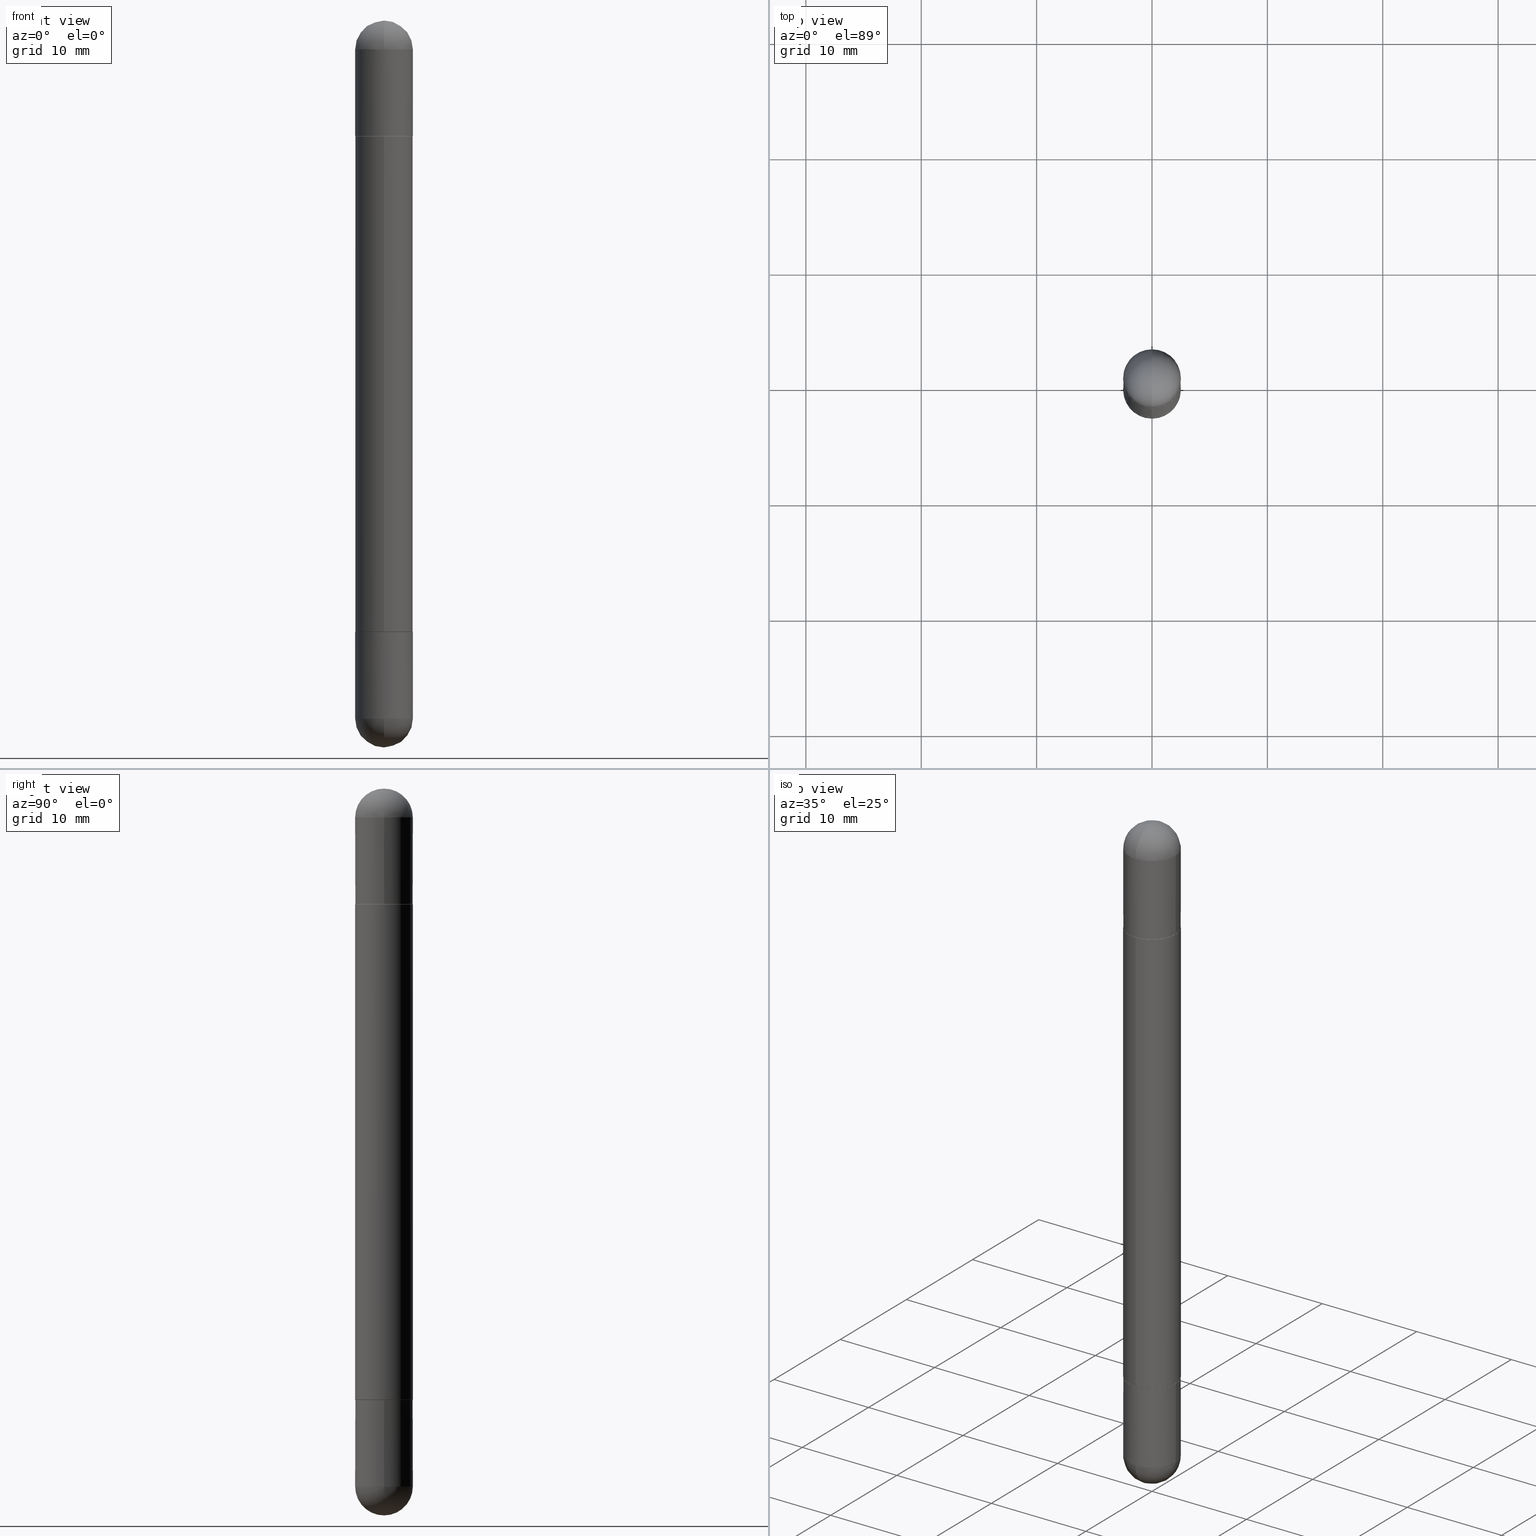
[diagram: canonical four-view strip — front | top / right | iso, engineering-drawing reading convention]
A machine part, canonical four-view strip (front | top / right | iso — engineering-drawing reading convention). The complete STEP part file that produces these views, byte-faithful:
ISO-10303-21;
HEADER;
FILE_DESCRIPTION (( 'STEP AP203' ),
    '1' );
FILE_NAME ('41438.STEP',
    '2024-03-01T12:44:50',
    ( '' ),
    ( '' ),
    'SwSTEP 2.0',
    'SolidWorks 2023',
    '' );
FILE_SCHEMA (( 'CONFIG_CONTROL_DESIGN' ));
ENDSEC;

DATA;
#1 = FACE_OUTER_BOUND ( 'NONE', #227, .T. ) ;
#2 = EDGE_CURVE ( 'NONE', #69, #377, #454, .T. ) ;
#3 = VERTEX_POINT ( 'NONE', #345 ) ;
#4 = ORIENTED_EDGE ( 'NONE', *, *, #318, .T. ) ;
#5 = AXIS2_PLACEMENT_3D ( 'NONE', #296, #549, #104 ) ;
#6 = DIRECTION ( 'NONE',  ( -1.000000000000000000, 7.105427357601001070E-15, -4.926315508542082329E-29 ) ) ;
#7 = CIRCLE ( 'NONE', #237, 0.09845000000000000973 ) ;
#8 = ORIENTED_EDGE ( 'NONE', *, *, #192, .T. ) ;
#9 = EDGE_CURVE ( 'NONE', #498, #541, #654, .T. ) ;
#10 = PLANE ( 'NONE',  #322 ) ;
#11 = ORIENTED_EDGE ( 'NONE', *, *, #26, .F. ) ;
#12 = DIRECTION ( 'NONE',  ( -6.982962677686266711E-15, -1.000000000000000000, -3.504166230970065993E-15 ) ) ;
#13 = ORIENTED_EDGE ( 'NONE', *, *, #95, .T. ) ;
#14 = DIRECTION ( 'NONE',  ( -6.982962677686265922E-15, -1.000000000000000000, -3.468572871589965081E-15 ) ) ;
#15 = EDGE_LOOP ( 'NONE', ( #450, #440, #8, #818 ) ) ;
#16 = FACE_OUTER_BOUND ( 'NONE', #316, .T. ) ;
#17 = EDGE_CURVE ( 'NONE', #404, #438, #636, .T. ) ;
#18 = AXIS2_PLACEMENT_3D ( 'NONE', #630, #817, #307 ) ;
#19 = EDGE_LOOP ( 'NONE', ( #277, #564 ) ) ;
#20 = AXIS2_PLACEMENT_3D ( 'NONE', #542, #790, #233 ) ;
#21 = PERSON_AND_ORGANIZATION ( #521, #639 ) ;
#22 = CC_DESIGN_APPROVAL ( #763, ( #219 ) ) ;
#23 = ORIENTED_EDGE ( 'NONE', *, *, #589, .T. ) ;
#24 = CARTESIAN_POINT ( 'NONE',  ( -6.804897129404755657E-16, -0.09745000000000728080, -2.086600000000000232 ) ) ;
#25 = DIRECTION ( 'NONE',  ( 2.445620201970747943E-29, -3.491264531461236863E-15, 1.000000000000000000 ) ) ;
#26 = EDGE_CURVE ( 'NONE', #477, #697, #283, .T. ) ;
#27 = DIRECTION ( 'NONE',  ( -6.982962677686265133E-15, -1.000000000000000000, -5.549716594543950441E-15 ) ) ;
#28 = ORIENTED_EDGE ( 'NONE', *, *, #375, .T. ) ;
#29 = ADVANCED_FACE ( 'NONE', ( #213 ), #755, .T. ) ;
#30 = APPROVAL_DATE_TIME ( #659, #763 ) ;
#31 = CARTESIAN_POINT ( 'NONE',  ( 5.824739876012068780E-29, -8.316184826923546689E-15, -0.09844999999999987095 ) ) ;
#32 = EDGE_LOOP ( 'NONE', ( #508, #484 ) ) ;
#33 = DIRECTION ( 'NONE',  ( -6.982962677686265922E-15, -1.000000000000000000, -3.468572871589965081E-15 ) ) ;
#34 = CIRCLE ( 'NONE', #706, 0.09845000000000000973 ) ;
#35 = CALENDAR_DATE ( 2024, 1, 3 ) ;
#36 = AXIS2_PLACEMENT_3D ( 'NONE', #208, #401, #334 ) ;
#37 = VECTOR ( 'NONE', #423, 39.37007874015748143 ) ;
#38 = AXIS2_PLACEMENT_3D ( 'NONE', #246, #251, #738 ) ;
#39 = DIRECTION ( 'NONE',  ( 2.445620201970747943E-29, -3.491264531461236863E-15, 1.000000000000000000 ) ) ;
#40 = CARTESIAN_POINT ( 'NONE',  ( -6.995293233557624958E-16, -0.09845000000000865559, -2.381850000000000023 ) ) ;
#41 = ADVANCED_FACE ( 'NONE', ( #460 ), #144, .T. ) ;
#42 = DIRECTION ( 'NONE',  ( 1.000000000000000000, -6.982962677686265922E-15, 0.000000000000000000 ) ) ;
#43 = DIRECTION ( 'NONE',  ( -2.445468806185136597E-29, 3.491481338843145583E-15, -1.000000000000000000 ) ) ;
#44 =( NAMED_UNIT ( * ) PLANE_ANGLE_UNIT ( ) SI_UNIT ( $, .RADIAN. ) );
#45 = CARTESIAN_POINT ( 'NONE',  ( 6.959766096770698684E-16, 0.09744999999999269524, -2.086600000000000676 ) ) ;
#46 = DIRECTION ( 'NONE',  ( 2.445620201970747943E-29, -3.491264531461236863E-15, 1.000000000000000000 ) ) ;
#47 = EDGE_CURVE ( 'NONE', #700, #775, #180, .T. ) ;
#48 = AXIS2_PLACEMENT_3D ( 'NONE', #488, #43, #292 ) ;
#49 = AXIS2_PLACEMENT_3D ( 'NONE', #778, #276, #466 ) ;
#50 = CC_DESIGN_SECURITY_CLASSIFICATION ( #615, ( #483 ) ) ;
#51 = DIRECTION ( 'NONE',  ( 6.860497997771531562E-15, 1.000000000000000000, 0.000000000000000000 ) ) ;
#52 = LINE ( 'NONE', #808, #795 ) ;
#53 = DIRECTION ( 'NONE',  ( -2.445620201970748223E-29, 3.491264531461236468E-15, -1.000000000000000000 ) ) ;
#54 = FACE_OUTER_BOUND ( 'NONE', #631, .T. ) ;
#55 = FACE_OUTER_BOUND ( 'NONE', #627, .T. ) ;
#56 = DIRECTION ( 'NONE',  ( 6.982962677686265922E-15, 1.000000000000000000, 3.468572871589967054E-15 ) ) ;
#57 = DIRECTION ( 'NONE',  ( -6.982962677686266711E-15, -1.000000000000000000, 2.803332984776052637E-15 ) ) ;
#58 = DIRECTION ( 'NONE',  ( -2.445468806185136597E-29, 3.491481338843145583E-15, -1.000000000000000000 ) ) ;
#59 = AXIS2_PLACEMENT_3D ( 'NONE', #620, #301, #605 ) ;
#60 = CIRCLE ( 'NONE', #518, 0.09844999999999999585 ) ;
#61 = CARTESIAN_POINT ( 'NONE',  ( 5.103031113432164627E-29, -7.284872571347017777E-15, -0.3936999999999999389 ) ) ;
#62 = VERTEX_POINT ( 'NONE', #270 ) ;
#63 = ORIENTED_EDGE ( 'NONE', *, *, #670, .F. ) ;
#64 = EDGE_CURVE ( 'NONE', #404, #446, #161, .T. ) ;
#65 = ADVANCED_FACE ( 'NONE', ( #210 ), #386, .T. ) ;
#66 = DIRECTION ( 'NONE',  ( 1.000000000000000000, -6.982962677686273810E-15, 0.000000000000000000 ) ) ;
#67 = EDGE_LOOP ( 'NONE', ( #172, #514, #73, #254 ) ) ;
#68 = CARTESIAN_POINT ( 'NONE',  ( 5.493620098098182533E-29, -8.790367195063598563E-15, -0.09844999999999987095 ) ) ;
#69 = VERTEX_POINT ( 'NONE', #719 ) ;
#70 = AXIS2_PLACEMENT_3D ( 'NONE', #462, #157, #777 ) ;
#71 = CARTESIAN_POINT ( 'NONE',  ( -0.09845000000000000973, 6.754160278806074041E-16, -2.480300000000000171 ) ) ;
#72 = AXIS2_PLACEMENT_3D ( 'NONE', #721, #339, #12 ) ;
#73 = ORIENTED_EDGE ( 'NONE', *, *, #273, .T. ) ;
#74 = ORIENTED_EDGE ( 'NONE', *, *, #17, .F. ) ;
#75 = ORIENTED_EDGE ( 'NONE', *, *, #463, .T. ) ;
#76 = DIRECTION ( 'NONE',  ( 2.445620201970747943E-29, -3.491264531461236863E-15, 1.000000000000000000 ) ) ;
#77 = EDGE_CURVE ( 'NONE', #389, #446, #34, .T. ) ;
#78 = DIRECTION ( 'NONE',  ( 6.982962677686265922E-15, 1.000000000000000000, 3.468572871589967054E-15 ) ) ;
#79 = ORIENTED_EDGE ( 'NONE', *, *, #759, .T. ) ;
#80 = PERSON_AND_ORGANIZATION_ROLE ( 'design_supplier' ) ;
#81 = ADVANCED_FACE ( 'NONE', ( #340 ), #140, .T. ) ;
#82 = DIRECTION ( 'NONE',  ( -2.445620201970747943E-29, 3.491264531461236468E-15, -1.000000000000000000 ) ) ;
#83 = AXIS2_PLACEMENT_3D ( 'NONE', #68, #262, #635 ) ;
#84 = EDGE_LOOP ( 'NONE', ( #686, #703, #529, #382, #205 ) ) ;
#85 = VECTOR ( 'NONE', #652, 39.37007874015748143 ) ;
#86 = PERSON_AND_ORGANIZATION_ROLE ( 'classification_officer' ) ;
#87 = AXIS2_PLACEMENT_3D ( 'NONE', #369, #606, #742 ) ;
#88 = CARTESIAN_POINT ( 'NONE',  ( -0.09844999999999999585, -7.101225570921008942E-15, -2.086600000000000232 ) ) ;
#89 = ADVANCED_FACE ( 'NONE', ( #491 ), #798, .T. ) ;
#90 = DIRECTION ( 'NONE',  ( 1.000000000000000000, -6.982962677686273810E-15, 0.000000000000000000 ) ) ;
#91 = DATE_TIME_ROLE ( 'creation_date' ) ;
#92 = FACE_OUTER_BOUND ( 'NONE', #358, .T. ) ;
#93 = ADVANCED_FACE ( 'NONE', ( #55 ), #430, .T. ) ;
#94 = VERTEX_POINT ( 'NONE', #304 ) ;
#95 = EDGE_CURVE ( 'NONE', #598, #250, #235, .T. ) ;
#96 = PERSON_AND_ORGANIZATION ( #521, #639 ) ;
#97 = CARTESIAN_POINT ( 'NONE',  ( -0.09845000000000000973, -7.125338866396221621E-15, -0.09844999999999987095 ) ) ;
#98 = DIRECTION ( 'NONE',  ( -0.000000000000000000, -0.000000000000000000, -1.000000000000000000 ) ) ;
#99 = AXIS2_PLACEMENT_3D ( 'NONE', #540, #741, #229 ) ;
#100 = CIRCLE ( 'NONE', #207, 0.09844999999999999585 ) ;
#101 = FACE_OUTER_BOUND ( 'NONE', #177, .T. ) ;
#102 = DIRECTION ( 'NONE',  ( -2.445620201970747943E-29, 3.491264531461236863E-15, 1.000000000000000000 ) ) ;
#103 = CARTESIAN_POINT ( 'NONE',  ( 5.103031113432164627E-29, -7.284872571347017777E-15, -0.3936999999999999389 ) ) ;
#104 = DIRECTION ( 'NONE',  ( 1.000000000000000000, -6.982962677686265922E-15, 0.000000000000000000 ) ) ;
#105 = ORIENTED_EDGE ( 'NONE', *, *, #550, .F. ) ;
#106 = DIRECTION ( 'NONE',  ( -1.000000000000000000, 6.982962677686265922E-15, 4.876176775795935793E-29 ) ) ;
#107 = CARTESIAN_POINT ( 'NONE',  ( 0.09845000000000000973, -8.488227569895042768E-15, -2.381850000000000467 ) ) ;
#108 = SPHERICAL_SURFACE ( 'NONE', #310, 0.09845000000000017626 ) ;
#109 = ORIENTED_EDGE ( 'NONE', *, *, #2, .F. ) ;
#110 = SPHERICAL_SURFACE ( 'NONE', #684, 0.09845000000000017626 ) ;
#111 = CLOSED_SHELL ( 'NONE', ( #295, #578, #500, #671, #716, #81, #29, #355 ) ) ;
#112 = CIRCLE ( 'NONE', #743, 0.09845000000000000973 ) ;
#113 = VECTOR ( 'NONE', #524, 39.37007874015748143 ) ;
#114 = LOCAL_TIME ( 7, 44, 50.00000000000000000, #403 ) ;
#115 = DIRECTION ( 'NONE',  ( 1.000000000000000000, -6.982962677686273810E-15, 0.000000000000000000 ) ) ;
#116 = DIRECTION ( 'NONE',  ( 1.000000000000000000, -6.982962677686266711E-15, 0.000000000000000000 ) ) ;
#117 = EDGE_CURVE ( 'NONE', #438, #389, #348, .T. ) ;
#118 = DIRECTION ( 'NONE',  ( -2.445468806185136597E-29, 3.491481338843145583E-15, 1.000000000000000000 ) ) ;
#119 = CARTESIAN_POINT ( 'NONE',  ( 5.493620098098182533E-29, -8.790367195063598563E-15, -0.09844999999999987095 ) ) ;
#120 = LINE ( 'NONE', #507, #783 ) ;
#121 = ORIENTED_EDGE ( 'NONE', *, *, #335, .F. ) ;
#122 = EDGE_CURVE ( 'NONE', #775, #700, #811, .T. ) ;
#123 = AXIS2_PLACEMENT_3D ( 'NONE', #797, #239, #551 ) ;
#124 = APPROVAL_PERSON_ORGANIZATION ( #341, #384, #588 ) ;
#125 = DIRECTION ( 'NONE',  ( -2.445620201970747943E-29, 3.491264531461236468E-15, -1.000000000000000000 ) ) ;
#126 = ORIENTED_EDGE ( 'NONE', *, *, #444, .T. ) ;
#127 = CC_DESIGN_PERSON_AND_ORGANIZATION_ASSIGNMENT ( #581, #80, ( #483 ) ) ;
#128 = DIRECTION ( 'NONE',  ( -4.937700262165011104E-15, -0.7071067811866114106, -0.7071067811864836239 ) ) ;
#129 = ORIENTED_EDGE ( 'NONE', *, *, #617, .T. ) ;
#130 = ORIENTED_EDGE ( 'NONE', *, *, #243, .F. ) ;
#131 = CARTESIAN_POINT ( 'NONE',  ( 6.874726756182700483E-16, 0.09844999999999154427, -2.381850000000000911 ) ) ;
#132 = ORIENTED_EDGE ( 'NONE', *, *, #550, .T. ) ;
#133 = ADVANCED_BREP_SHAPE_REPRESENTATION ( '41438', ( #538, #263, #814, #232, #807, #571 ), #151 ) ;
#134 = CIRCLE ( 'NONE', #443, 0.09744999999999999496 ) ;
#135 = LINE ( 'NONE', #594, #181 ) ;
#136 = ORIENTED_EDGE ( 'NONE', *, *, #522, .F. ) ;
#137 = ORIENTED_EDGE ( 'NONE', *, *, #273, .F. ) ;
#138 = DATE_AND_TIME ( #767, #195 ) ;
#139 = DIRECTION ( 'NONE',  ( -2.445468806185136877E-29, 3.491481338843145188E-15, -1.000000000000000000 ) ) ;
#140 = CYLINDRICAL_SURFACE ( 'NONE', #442, 0.09845000000000013463 ) ;
#141 = APPROVAL_ROLE ( '' ) ;
#142 = ADVANCED_FACE ( 'NONE', ( #803 ), #418, .T. ) ;
#143 = CARTESIAN_POINT ( 'NONE',  ( -6.874726756182137434E-16, -0.09845000000000013463, -2.480300000000001059 ) ) ;
#144 = SPHERICAL_SURFACE ( 'NONE', #494, 0.09845000000000017626 ) ;
#145 = EDGE_CURVE ( 'NONE', #3, #498, #52, .T. ) ;
#146 = DIRECTION ( 'NONE',  ( 2.445468806185136597E-29, -3.491481338843145583E-15, 1.000000000000000000 ) ) ;
#147 = AXIS2_PLACEMENT_3D ( 'NONE', #587, #715, #410 ) ;
#148 = CARTESIAN_POINT ( 'NONE',  ( 5.824739876012068780E-29, -8.316184826923546689E-15, -0.09844999999999987095 ) ) ;
#149 = AXIS2_PLACEMENT_3D ( 'NONE', #559, #815, #625 ) ;
#150 = PERSON_AND_ORGANIZATION ( #521, #639 ) ;
#151 =( GEOMETRIC_REPRESENTATION_CONTEXT ( 3 ) GLOBAL_UNCERTAINTY_ASSIGNED_CONTEXT ( ( #646 ) ) GLOBAL_UNIT_ASSIGNED_CONTEXT ( ( #735, #44, #163 ) ) REPRESENTATION_CONTEXT ( 'NONE', 'WORKASPACE' ) );
#152 = ORIENTED_EDGE ( 'NONE', *, *, #265, .F. ) ;
#153 = CARTESIAN_POINT ( 'NONE',  ( -6.874726756181635521E-16, -0.09845000000000754536, -0.3947000000000003839 ) ) ;
#154 = ORIENTED_EDGE ( 'NONE', *, *, #2, .T. ) ;
#155 = DATE_AND_TIME ( #328, #710 ) ;
#156 = DIRECTION ( 'NONE',  ( 6.982962677686265922E-15, 1.000000000000000000, -2.774858297271973643E-15 ) ) ;
#157 = DIRECTION ( 'NONE',  ( -2.445620201970747943E-29, 3.491264531461236863E-15, 1.000000000000000000 ) ) ;
#158 = EDGE_LOOP ( 'NONE', ( #130, #4, #391, #468, #789 ) ) ;
#159 = DIRECTION ( 'NONE',  ( -2.445468806185136597E-29, 3.491481338843145583E-15, 1.000000000000000000 ) ) ;
#160 = CARTESIAN_POINT ( 'NONE',  ( 6.719857788817732685E-16, 0.09744999999999269524, -0.3936999999999996058 ) ) ;
#161 = CIRCLE ( 'NONE', #597, 0.09845000000000017626 ) ;
#162 = EDGE_LOOP ( 'NONE', ( #698, #361, #372, #137 ) ) ;
#163 =( NAMED_UNIT ( * ) SI_UNIT ( $, .STERADIAN. ) SOLID_ANGLE_UNIT ( ) );
#164 = AXIS2_PLACEMENT_3D ( 'NONE', #436, #6, #259 ) ;
#165 = CIRCLE ( 'NONE', #87, 0.09744999999999999496 ) ;
#166 = CYLINDRICAL_SURFACE ( 'NONE', #388, 0.09845000000000000973 ) ;
#167 = FACE_OUTER_BOUND ( 'NONE', #523, .T. ) ;
#168 = FACE_OUTER_BOUND ( 'NONE', #158, .T. ) ;
#169 = SPHERICAL_SURFACE ( 'NONE', #496, 0.09845000000000017626 ) ;
#170 = DIRECTION ( 'NONE',  ( -6.982962677686265133E-15, -1.000000000000000000, -5.549716594543950441E-15 ) ) ;
#171 = ORIENTED_EDGE ( 'NONE', *, *, #257, .T. ) ;
#172 = ORIENTED_EDGE ( 'NONE', *, *, #643, .F. ) ;
#173 = APPLICATION_PROTOCOL_DEFINITION ( 'international standard', 'config_control_design', 1994, #668 ) ;
#174 = ADVANCED_FACE ( 'NONE', ( #249 ), #552, .T. ) ;
#175 = DIRECTION ( 'NONE',  ( -2.445468806185136877E-29, 3.491481338843145188E-15, 1.000000000000000000 ) ) ;
#176 = CARTESIAN_POINT ( 'NONE',  ( 0.000000000000000000, 0.000000000000000000, 0.000000000000000000 ) ) ;
#177 = EDGE_LOOP ( 'NONE', ( #760, #264 ) ) ;
#178 = CARTESIAN_POINT ( 'NONE',  ( 5.738586058125595532E-29, -9.128075209003904434E-15, 3.073328992872296367E-16 ) ) ;
#179 = AXIS2_PLACEMENT_3D ( 'NONE', #661, #76, #33 ) ;
#180 = CIRCLE ( 'NONE', #582, 0.09845000000000024565 ) ;
#181 = VECTOR ( 'NONE', #390, 39.37007874015748143 ) ;
#182 = CIRCLE ( 'NONE', #38, 0.09844999999999999585 ) ;
#183 = FACE_OUTER_BOUND ( 'NONE', #765, .T. ) ;
#184 = CARTESIAN_POINT ( 'NONE',  ( 5.824739876012068780E-29, -8.316184826923546689E-15, -2.381850000000000467 ) ) ;
#185 = CARTESIAN_POINT ( 'NONE',  ( 0.000000000000000000, 0.000000000000000000, -2.480300000000000171 ) ) ;
#186 = FACE_OUTER_BOUND ( 'NONE', #634, .T. ) ;
#187 = ORIENTED_EDGE ( 'NONE', *, *, #17, .T. ) ;
#188 = LINE ( 'NONE', #439, #583 ) ;
#189 = ORIENTED_EDGE ( 'NONE', *, *, #405, .T. ) ;
#190 = ORIENTED_EDGE ( 'NONE', *, *, #318, .F. ) ;
#191 = ORIENTED_EDGE ( 'NONE', *, *, #411, .F. ) ;
#192 = EDGE_CURVE ( 'NONE', #477, #598, #475, .T. ) ;
#193 = AXIS2_PLACEMENT_3D ( 'NONE', #284, #274, #537 ) ;
#194 = AXIS2_PLACEMENT_3D ( 'NONE', #702, #317, #57 ) ;
#195 = LOCAL_TIME ( 7, 44, 50.00000000000000000, #527 ) ;
#196 = DIRECTION ( 'NONE',  ( -6.982962677686265922E-15, -1.000000000000000000, 3.491264531461236468E-15 ) ) ;
#197 = VERTEX_POINT ( 'NONE', #793 ) ;
#198 = CARTESIAN_POINT ( 'NONE',  ( 0.000000000000000000, 0.000000000000000000, -1.240150000000000086 ) ) ;
#199 = ORIENTED_EDGE ( 'NONE', *, *, #26, .T. ) ;
#200 = DIRECTION ( 'NONE',  ( -2.445468806185136597E-29, 3.491481338843145583E-15, 1.000000000000000000 ) ) ;
#201 = ORIENTED_EDGE ( 'NONE', *, *, #791, .F. ) ;
#202 = DESIGN_CONTEXT ( 'detailed design', #472, 'design' ) ;
#203 = VERTEX_POINT ( 'NONE', #160 ) ;
#204 = APPROVAL_STATUS ( 'not_yet_approved' ) ;
#205 = ORIENTED_EDGE ( 'NONE', *, *, #215, .F. ) ;
#206 = CIRCLE ( 'NONE', #5, 0.09844999999999999585 ) ;
#207 = AXIS2_PLACEMENT_3D ( 'NONE', #474, #228, #226 ) ;
#208 = CARTESIAN_POINT ( 'NONE',  ( 5.824739876012068780E-29, -8.316184826923546689E-15, -0.09844999999999987095 ) ) ;
#209 = AXIS2_PLACEMENT_3D ( 'NONE', #359, #553, #669 ) ;
#210 = FACE_OUTER_BOUND ( 'NONE', #566, .T. ) ;
#211 = COORDINATED_UNIVERSAL_TIME_OFFSET ( 5, 0, .BEHIND. ) ;
#212 = DIRECTION ( 'NONE',  ( -2.445620201970747943E-29, 3.491264531461236863E-15, -1.000000000000000000 ) ) ;
#213 = FACE_OUTER_BOUND ( 'NONE', #15, .T. ) ;
#214 = EDGE_CURVE ( 'NONE', #248, #633, #271, .T. ) ;
#215 = EDGE_CURVE ( 'NONE', #437, #94, #206, .T. ) ;
#216 = CARTESIAN_POINT ( 'NONE',  ( 5.824739876012068780E-29, -8.316184826923546689E-15, -0.09844999999999987095 ) ) ;
#217 = DIRECTION ( 'NONE',  ( -6.982962677686266711E-15, -1.000000000000000000, -3.504166230970065993E-15 ) ) ;
#218 = COORDINATED_UNIVERSAL_TIME_OFFSET ( 5, 0, .BEHIND. ) ;
#219 = PRODUCT_DEFINITION ( 'UNKNOWN', '', #483, #202 ) ;
#220 = DIRECTION ( 'NONE',  ( -2.445620201970747943E-29, 3.491264531461236863E-15, -1.000000000000000000 ) ) ;
#221 = CLOSED_SHELL ( 'NONE', ( #142, #65, #291, #805, #93, #509 ) ) ;
#222 = VECTOR ( 'NONE', #128, 39.37007874015748143 ) ;
#223 = ORIENTED_EDGE ( 'NONE', *, *, #650, .F. ) ;
#224 = AXIS2_PLACEMENT_3D ( 'NONE', #512, #590, #282 ) ;
#225 = APPROVAL_DATE_TIME ( #648, #384 ) ;
#226 = DIRECTION ( 'NONE',  ( 1.000000000000000000, -6.982962677686265922E-15, 0.000000000000000000 ) ) ;
#227 = EDGE_LOOP ( 'NONE', ( #199, #441, #489, #448 ) ) ;
#228 = DIRECTION ( 'NONE',  ( 2.445468806185136597E-29, -3.491481338843145583E-15, 1.000000000000000000 ) ) ;
#229 = DIRECTION ( 'NONE',  ( 1.000000000000000000, -6.982962677686273810E-15, 0.000000000000000000 ) ) ;
#230 = ADVANCED_FACE ( 'NONE', ( #167 ), #108, .T. ) ;
#231 = DIRECTION ( 'NONE',  ( 1.000000000000000000, -6.982962677686266711E-15, 0.000000000000000000 ) ) ;
#232 = MANIFOLD_SOLID_BREP ( 'Mirror4[4]', #531 ) ;
#233 = DIRECTION ( 'NONE',  ( -6.982962677686266711E-15, -1.000000000000000000, -3.504166230970065993E-15 ) ) ;
#234 = DIRECTION ( 'NONE',  ( -6.982962677686265922E-15, -1.000000000000000000, -3.468572871589965081E-15 ) ) ;
#235 = CIRCLE ( 'NONE', #664, 0.09845000000000024565 ) ;
#236 = DIRECTION ( 'NONE',  ( -6.982962677686265922E-15, -1.000000000000000000, -3.491264531461236468E-15 ) ) ;
#237 = AXIS2_PLACEMENT_3D ( 'NONE', #563, #756, #380 ) ;
#238 = APPROVAL_PERSON_ORGANIZATION ( #96, #801, #596 ) ;
#239 = DIRECTION ( 'NONE',  ( -0.000000000000000000, -0.000000000000000000, -1.000000000000000000 ) ) ;
#240 = DIRECTION ( 'NONE',  ( -6.982962677686266711E-15, -1.000000000000000000, -3.504166230970065993E-15 ) ) ;
#241 = ORIENTED_EDGE ( 'NONE', *, *, #713, .F. ) ;
#242 = EDGE_CURVE ( 'NONE', #637, #577, #638, .T. ) ;
#243 = EDGE_CURVE ( 'NONE', #197, #685, #769, .T. ) ;
#244 = DIRECTION ( 'NONE',  ( 1.000000000000000000, -6.860497997771530774E-15, -4.840798879624142912E-29 ) ) ;
#245 = DIRECTION ( 'NONE',  ( -4.937700262165011104E-15, -0.7071067811866114106, 0.7071067811864836239 ) ) ;
#246 = CARTESIAN_POINT ( 'NONE',  ( 5.102715210985907397E-29, -7.285324961630108994E-15, -0.3936999999999999389 ) ) ;
#247 = LINE ( 'NONE', #744, #467 ) ;
#248 = VERTEX_POINT ( 'NONE', #40 ) ;
#249 = FACE_OUTER_BOUND ( 'NONE', #503, .T. ) ;
#250 = VERTEX_POINT ( 'NONE', #362 ) ;
#251 = DIRECTION ( 'NONE',  ( 2.445468806185136597E-29, -3.491481338843145583E-15, 1.000000000000000000 ) ) ;
#252 = AXIS2_PLACEMENT_3D ( 'NONE', #394, #645, #78 ) ;
#253 = DIRECTION ( 'NONE',  ( 2.445468806185136597E-29, -3.491481338843145583E-15, 1.000000000000000000 ) ) ;
#254 = ORIENTED_EDGE ( 'NONE', *, *, #47, .T. ) ;
#255 = EDGE_CURVE ( 'NONE', #62, #248, #112, .T. ) ;
#256 = FACE_OUTER_BOUND ( 'NONE', #32, .T. ) ;
#257 = EDGE_CURVE ( 'NONE', #799, #377, #569, .T. ) ;
#258 = ORIENTED_EDGE ( 'NONE', *, *, #792, .T. ) ;
#259 = DIRECTION ( 'NONE',  ( -7.105427357601001070E-15, -1.000000000000000000, 0.000000000000000000 ) ) ;
#260 = EDGE_LOOP ( 'NONE', ( #452, #753, #223, #327 ) ) ;
#261 = EDGE_CURVE ( 'NONE', #250, #598, #517, .T. ) ;
#262 = DIRECTION ( 'NONE',  ( 1.000000000000000000, -6.982962677686265922E-15, -4.883557194083112901E-29 ) ) ;
#263 = MANIFOLD_SOLID_BREP ( 'Mirror4[1]', #221 ) ;
#264 = ORIENTED_EDGE ( 'NONE', *, *, #379, .F. ) ;
#265 = EDGE_CURVE ( 'NONE', #717, #3, #694, .T. ) ;
#266 = ORIENTED_EDGE ( 'NONE', *, *, #670, .T. ) ;
#267 = ADVANCED_FACE ( 'NONE', ( #186 ), #691, .T. ) ;
#268 = SPHERICAL_SURFACE ( 'NONE', #252, 0.09845000000000017626 ) ;
#269 = ORIENTED_EDGE ( 'NONE', *, *, #255, .F. ) ;
#270 = CARTESIAN_POINT ( 'NONE',  ( -0.09845000000000000973, -7.101225570921009731E-15, -2.381850000000000467 ) ) ;
#271 = CIRCLE ( 'NONE', #504, 0.09845000000000000973 ) ;
#272 = CYLINDRICAL_SURFACE ( 'NONE', #746, 0.09845000000000013463 ) ;
#273 = EDGE_CURVE ( 'NONE', #575, #700, #567, .T. ) ;
#274 = DIRECTION ( 'NONE',  ( 1.000000000000000000, -6.860497997771530774E-15, -4.840798879624142912E-29 ) ) ;
#275 = COORDINATED_UNIVERSAL_TIME_OFFSET ( 5, 0, .BEHIND. ) ;
#276 = DIRECTION ( 'NONE',  ( 2.445620201970747943E-29, -3.491264531461236863E-15, 1.000000000000000000 ) ) ;
#277 = ORIENTED_EDGE ( 'NONE', *, *, #713, .T. ) ;
#278 = DIRECTION ( 'NONE',  ( -1.000000000000000000, 6.982962677686265922E-15, 4.883557194083112340E-29 ) ) ;
#279 = LINE ( 'NONE', #397, #113 ) ;
#280 = ORIENTED_EDGE ( 'NONE', *, *, #791, .T. ) ;
#281 = PERSON_AND_ORGANIZATION ( #521, #639 ) ;
#282 = DIRECTION ( 'NONE',  ( -6.982962677686266711E-15, -1.000000000000000000, 2.803332984776052637E-15 ) ) ;
#283 = CIRCLE ( 'NONE', #533, 0.09744999999999999496 ) ;
#284 = CARTESIAN_POINT ( 'NONE',  ( 5.493620098098182533E-29, -8.790367195063598563E-15, -0.09844999999999987095 ) ) ;
#285 = CIRCLE ( 'NONE', #164, 0.09845000000000017626 ) ;
#286 = DATE_AND_TIME ( #35, #656 ) ;
#287 = CC_DESIGN_PERSON_AND_ORGANIZATION_ASSIGNMENT ( #396, #469, ( #483 ) ) ;
#288 = DIRECTION ( 'NONE',  ( -6.982962677686266711E-15, -1.000000000000000000, -3.504166230970065993E-15 ) ) ;
#289 = CARTESIAN_POINT ( 'NONE',  ( 5.824739876012068780E-29, -8.316184826923546689E-15, -2.381850000000000467 ) ) ;
#290 = FACE_OUTER_BOUND ( 'NONE', #67, .T. ) ;
#291 = ADVANCED_FACE ( 'NONE', ( #256 ), #699, .F. ) ;
#292 = DIRECTION ( 'NONE',  ( 1.000000000000000000, -6.982962677686266711E-15, 0.000000000000000000 ) ) ;
#293 = CARTESIAN_POINT ( 'NONE',  ( 0.000000000000000000, 0.000000000000000000, -2.480300000000000171 ) ) ;
#294 = LINE ( 'NONE', #740, #708 ) ;
#295 = ADVANCED_FACE ( 'NONE', ( #1 ), #782, .T. ) ;
#296 = CARTESIAN_POINT ( 'NONE',  ( 5.102715210985907397E-29, -7.285324961630108994E-15, -2.086600000000000232 ) ) ;
#297 = AXIS2_PLACEMENT_3D ( 'NONE', #457, #712, #217 ) ;
#298 = EDGE_LOOP ( 'NONE', ( #74, #568, #309, #189 ) ) ;
#299 = CIRCLE ( 'NONE', #123, 0.09845000000000013463 ) ;
#300 = CARTESIAN_POINT ( 'NONE',  ( 0.09845000000000000973, -6.874726756182130531E-16, 4.800596035771099214E-30 ) ) ;
#301 = DIRECTION ( 'NONE',  ( -2.445620201970747943E-29, 3.491264531461236863E-15, -1.000000000000000000 ) ) ;
#302 = CARTESIAN_POINT ( 'NONE',  ( 0.09844999999999999585, -7.972797637248321554E-15, -0.3936999999999999389 ) ) ;
#303 = CARTESIAN_POINT ( 'NONE',  ( -6.754160278805513950E-16, -0.09845000000000865559, -0.09845000000000021789 ) ) ;
#304 = CARTESIAN_POINT ( 'NONE',  ( 0.09844999999999999585, -7.972797637248321554E-15, -2.086600000000000232 ) ) ;
#305 = ORIENTED_EDGE ( 'NONE', *, *, #312, .F. ) ;
#306 = CARTESIAN_POINT ( 'NONE',  ( 6.924238959982684768E-16, 0.09744999999999269524, -2.086600000000000676 ) ) ;
#307 = DIRECTION ( 'NONE',  ( -6.982962677686265922E-15, -1.000000000000000000, 2.774858297271972065E-15 ) ) ;
#308 = VERTEX_POINT ( 'NONE', #131 ) ;
#309 = ORIENTED_EDGE ( 'NONE', *, *, #420, .T. ) ;
#310 = AXIS2_PLACEMENT_3D ( 'NONE', #422, #674, #429 ) ;
#311 = CIRCLE ( 'NONE', #417, 0.09744999999999999496 ) ;
#312 = EDGE_CURVE ( 'NONE', #633, #308, #321, .T. ) ;
#313 = CARTESIAN_POINT ( 'NONE',  ( 5.102715210985907397E-29, -7.285324961630108994E-15, -0.3936999999999999389 ) ) ;
#314 = ORIENTED_EDGE ( 'NONE', *, *, #122, .F. ) ;
#315 = CARTESIAN_POINT ( 'NONE',  ( 5.103031113432164627E-29, -7.284872571347017777E-15, -2.086600000000000232 ) ) ;
#316 = EDGE_LOOP ( 'NONE', ( #314, #602, #693, #705 ) ) ;
#317 = DIRECTION ( 'NONE',  ( -2.445620201970747943E-29, 3.491264531461236863E-15, 1.000000000000000000 ) ) ;
#318 = EDGE_CURVE ( 'NONE', #197, #324, #510, .T. ) ;
#319 = ORIENTED_EDGE ( 'NONE', *, *, #683, .T. ) ;
#320 = EDGE_LOOP ( 'NONE', ( #342, #187, #595, #395 ) ) ;
#321 = CIRCLE ( 'NONE', #796, 0.09845000000000000973 ) ;
#322 = AXIS2_PLACEMENT_3D ( 'NONE', #315, #752, #196 ) ;
#323 = DIRECTION ( 'NONE',  ( -2.445468806185136877E-29, 3.491481338843145188E-15, -1.000000000000000000 ) ) ;
#324 = VERTEX_POINT ( 'NONE', #499 ) ;
#325 = CARTESIAN_POINT ( 'NONE',  ( -0.09845000000000000973, 6.754160278806074041E-16, -2.480300000000000171 ) ) ;
#326 = ORIENTED_EDGE ( 'NONE', *, *, #335, .T. ) ;
#327 = ORIENTED_EDGE ( 'NONE', *, *, #375, .F. ) ;
#328 = CALENDAR_DATE ( 2024, 1, 3 ) ;
#329 = CARTESIAN_POINT ( 'NONE',  ( -6.804897129404755657E-16, -0.09745000000000728080, -0.3937000000000002720 ) ) ;
#330 = ORIENTED_EDGE ( 'NONE', *, *, #729, .T. ) ;
#331 = PERSON_AND_ORGANIZATION_ROLE ( 'design_owner' ) ;
#332 = AXIS2_PLACEMENT_3D ( 'NONE', #61, #761, #632 ) ;
#333 = VECTOR ( 'NONE', #82, 39.37007874015748143 ) ;
#334 = DIRECTION ( 'NONE',  ( 1.000000000000000000, -6.982962677686273810E-15, 0.000000000000000000 ) ) ;
#335 = EDGE_CURVE ( 'NONE', #751, #248, #285, .T. ) ;
#336 = CIRCLE ( 'NONE', #209, 0.09845000000000017626 ) ;
#337 = EDGE_LOOP ( 'NONE', ( #63, #171, #75, #476 ) ) ;
#338 = PRODUCT_DEFINITION_SHAPE ( 'NONE', 'NONE',  #219 ) ;
#339 = DIRECTION ( 'NONE',  ( -2.445620201970747943E-29, 3.491264531461236863E-15, -1.000000000000000000 ) ) ;
#340 = FACE_OUTER_BOUND ( 'NONE', #780, .T. ) ;
#341 = PERSON_AND_ORGANIZATION ( #521, #639 ) ;
#342 = ORIENTED_EDGE ( 'NONE', *, *, #64, .F. ) ;
#343 = CARTESIAN_POINT ( 'NONE',  ( 0.000000000000000000, 0.000000000000000000, 0.000000000000000000 ) ) ;
#344 = ORIENTED_EDGE ( 'NONE', *, *, #47, .F. ) ;
#345 = CARTESIAN_POINT ( 'NONE',  ( 6.719857788817732685E-16, 0.09744999999999269524, -0.3936999999999996058 ) ) ;
#346 = APPROVAL_STATUS ( 'not_yet_approved' ) ;
#347 = DIRECTION ( 'NONE',  ( 2.438088387897960049E-29, -3.491481338843145188E-15, 1.000000000000000000 ) ) ;
#348 = CIRCLE ( 'NONE', #99, 0.09845000000000000973 ) ;
#349 = AXIS2_PLACEMENT_3D ( 'NONE', #415, #244, #51 ) ;
#350 = CARTESIAN_POINT ( 'NONE',  ( 3.032935893474023384E-29, -4.329691708691653720E-15, -1.240150000000000086 ) ) ;
#351 = ORIENTED_EDGE ( 'NONE', *, *, #683, .F. ) ;
#352 = PLANE ( 'NONE',  #812 ) ;
#353 = DIRECTION ( 'NONE',  ( -6.982962677686265922E-15, -1.000000000000000000, 2.774858297271972065E-15 ) ) ;
#354 = CARTESIAN_POINT ( 'NONE',  ( 0.000000000000000000, 0.000000000000000000, 0.000000000000000000 ) ) ;
#355 = ADVANCED_FACE ( 'NONE', ( #764 ), #10, .F. ) ;
#356 = DIRECTION ( 'NONE',  ( -2.445468806185136597E-29, 3.491481338843145583E-15, -1.000000000000000000 ) ) ;
#357 = DIRECTION ( 'NONE',  ( -1.000000000000000000, 0.000000000000000000, 0.000000000000000000 ) ) ;
#358 = EDGE_LOOP ( 'NONE', ( #319, #330, #241, #470, #593 ) ) ;
#359 = CARTESIAN_POINT ( 'NONE',  ( 5.493620098098182533E-29, -8.790367195063598563E-15, -2.381850000000000467 ) ) ;
#360 = CARTESIAN_POINT ( 'NONE',  ( 6.685555298828866736E-16, 0.09744999999999269524, -0.3936999999999996058 ) ) ;
#361 = ORIENTED_EDGE ( 'NONE', *, *, #643, .T. ) ;
#362 = CARTESIAN_POINT ( 'NONE',  ( 6.754160278806389586E-16, 0.09844999999999297369, -2.085600000000000342 ) ) ;
#363 = AXIS2_PLACEMENT_3D ( 'NONE', #176, #543, #788 ) ;
#364 = DIRECTION ( 'NONE',  ( 0.000000000000000000, 0.000000000000000000, 1.000000000000000000 ) ) ;
#365 = VECTOR ( 'NONE', #175, 39.37007874015748143 ) ;
#366 = CARTESIAN_POINT ( 'NONE',  ( 6.754160278806588773E-16, 0.09844999999999579088, -1.240150000000000086 ) ) ;
#367 = CARTESIAN_POINT ( 'NONE',  ( 5.493620098098182533E-29, -8.790367195063598563E-15, -0.09844999999999987095 ) ) ;
#368 = DIRECTION ( 'NONE',  ( -2.445620201970747943E-29, 3.491264531461236468E-15, -1.000000000000000000 ) ) ;
#369 = CARTESIAN_POINT ( 'NONE',  ( 5.103031113432164627E-29, -7.284872571347017777E-15, -0.3936999999999999389 ) ) ;
#370 = CC_DESIGN_PERSON_AND_ORGANIZATION_ASSIGNMENT ( #281, #453, ( #219 ) ) ;
#371 = FACE_OUTER_BOUND ( 'NONE', #19, .T. ) ;
#372 = ORIENTED_EDGE ( 'NONE', *, *, #122, .T. ) ;
#373 = ORIENTED_EDGE ( 'NONE', *, *, #405, .F. ) ;
#374 = CONICAL_SURFACE ( 'NONE', #20, 0.09744999999999999496, 0.7853981633975420928 ) ;
#375 = EDGE_CURVE ( 'NONE', #541, #577, #120, .T. ) ;
#376 = DIRECTION ( 'NONE',  ( -1.000000000000000000, 6.982962677686265922E-15, 4.883557194083112340E-29 ) ) ;
#377 = VERTEX_POINT ( 'NONE', #622 ) ;
#378 = ADVANCED_FACE ( 'NONE', ( #371 ), #445, .F. ) ;
#379 = EDGE_CURVE ( 'NONE', #774, #628, #432, .T. ) ;
#380 = DIRECTION ( 'NONE',  ( 1.000000000000000000, -6.982962677686273810E-15, 0.000000000000000000 ) ) ;
#381 = ORIENTED_EDGE ( 'NONE', *, *, #689, .F. ) ;
#382 = ORIENTED_EDGE ( 'NONE', *, *, #613, .T. ) ;
#383 = CARTESIAN_POINT ( 'NONE',  ( 5.824739876012068780E-29, -8.316184826923546689E-15, -2.381850000000000467 ) ) ;
#384 = APPROVAL ( #412, 'UNSPECIFIED' ) ;
#385 = EDGE_LOOP ( 'NONE', ( #190, #515, #109, #126, #816 ) ) ;
#386 = CONICAL_SURFACE ( 'NONE', #297, 0.09744999999999999496, 0.7853981633975420928 ) ;
#387 = AXIS2_PLACEMENT_3D ( 'NONE', #31, #773, #408 ) ;
#388 = AXIS2_PLACEMENT_3D ( 'NONE', #421, #356, #607 ) ;
#389 = VERTEX_POINT ( 'NONE', #695 ) ;
#390 = DIRECTION ( 'NONE',  ( -2.445468806185136877E-29, 3.491481338843145188E-15, -1.000000000000000000 ) ) ;
#391 = ORIENTED_EDGE ( 'NONE', *, *, #689, .T. ) ;
#392 = ORIENTED_EDGE ( 'NONE', *, *, #379, .T. ) ;
#393 = SHAPE_DEFINITION_REPRESENTATION ( #338, #133 ) ;
#394 = CARTESIAN_POINT ( 'NONE',  ( 5.493620098098182533E-29, -8.790367195063598563E-15, -0.09844999999999987095 ) ) ;
#395 = ORIENTED_EDGE ( 'NONE', *, *, #77, .T. ) ;
#396 = PERSON_AND_ORGANIZATION ( #521, #639 ) ;
#397 = CARTESIAN_POINT ( 'NONE',  ( 0.09845000000000000973, -6.874726756182130531E-16, -2.480300000000000171 ) ) ;
#398 = DIRECTION ( 'NONE',  ( 6.982962677686265922E-15, 1.000000000000000000, 3.468572871589967054E-15 ) ) ;
#399 = AXIS2_PLACEMENT_3D ( 'NONE', #677, #614, #240 ) ;
#400 = AXIS2_PLACEMENT_3D ( 'NONE', #216, #146, #586 ) ;
#401 = DIRECTION ( 'NONE',  ( 2.445468806185136597E-29, -3.491481338843145583E-15, 1.000000000000000000 ) ) ;
#402 = DIRECTION ( 'NONE',  ( 2.445468806185136597E-29, -3.491481338843145583E-15, 1.000000000000000000 ) ) ;
#403 = COORDINATED_UNIVERSAL_TIME_OFFSET ( 5, 0, .BEHIND. ) ;
#404 = VERTEX_POINT ( 'NONE', #749 ) ;
#405 = EDGE_CURVE ( 'NONE', #644, #438, #7, .T. ) ;
#406 = PRODUCT ( '41438', '41438', '', ( #530 ) ) ;
#407 = EDGE_CURVE ( 'NONE', #775, #250, #188, .T. ) ;
#408 = DIRECTION ( 'NONE',  ( 1.000000000000000000, -6.982962677686273810E-15, 0.000000000000000000 ) ) ;
#409 = ORIENTED_EDGE ( 'NONE', *, *, #117, .F. ) ;
#410 = DIRECTION ( 'NONE',  ( 1.000000000000000000, -6.982962677686273810E-15, 0.000000000000000000 ) ) ;
#411 = EDGE_CURVE ( 'NONE', #766, #324, #465, .T. ) ;
#412 = APPROVAL_STATUS ( 'not_yet_approved' ) ;
#413 = DIRECTION ( 'NONE',  ( 2.445620201970747943E-29, -3.491264531461236863E-15, 1.000000000000000000 ) ) ;
#414 = CARTESIAN_POINT ( 'NONE',  ( 5.493620098098182533E-29, -8.790367195063598563E-15, -0.09844999999999987095 ) ) ;
#415 = CARTESIAN_POINT ( 'NONE',  ( 5.493620098098182533E-29, -8.790367195063598563E-15, -0.09844999999999987095 ) ) ;
#416 = AXIS2_PLACEMENT_3D ( 'NONE', #367, #376, #688 ) ;
#417 = AXIS2_PLACEMENT_3D ( 'NONE', #600, #39, #288 ) ;
#418 = CYLINDRICAL_SURFACE ( 'NONE', #59, 0.09845000000000013463 ) ;
#419 = LOCAL_TIME ( 7, 44, 50.00000000000000000, #211 ) ;
#420 = EDGE_CURVE ( 'NONE', #446, #644, #534, .T. ) ;
#421 = CARTESIAN_POINT ( 'NONE',  ( 0.000000000000000000, 0.000000000000000000, -2.480300000000000171 ) ) ;
#422 = CARTESIAN_POINT ( 'NONE',  ( 5.493620098098182533E-29, -8.790367195063598563E-15, -2.381850000000000467 ) ) ;
#423 = DIRECTION ( 'NONE',  ( 5.024295867788533340E-15, 0.7071067811866162955, 0.7071067811864787389 ) ) ;
#424 = EDGE_CURVE ( 'NONE', #644, #774, #657, .T. ) ;
#425 = CARTESIAN_POINT ( 'NONE',  ( -6.874726756181636507E-16, -0.09845000000000751761, -2.085599999999999898 ) ) ;
#426 = DIRECTION ( 'NONE',  ( -2.445468806185136597E-29, 3.491481338843145583E-15, 1.000000000000000000 ) ) ;
#427 = DIRECTION ( 'NONE',  ( 1.000000000000000000, 0.000000000000000000, 0.000000000000000000 ) ) ;
#428 = DIRECTION ( 'NONE',  ( -2.445620201970748223E-29, 3.491264531461236468E-15, -1.000000000000000000 ) ) ;
#429 = DIRECTION ( 'NONE',  ( 6.982962677686265922E-15, 1.000000000000000000, -2.774858297271973643E-15 ) ) ;
#430 = CONICAL_SURFACE ( 'NONE', #399, 0.09744999999999999496, 0.7853981633975420928 ) ;
#431 = PLANE ( 'NONE',  #506 ) ;
#432 = CIRCLE ( 'NONE', #626, 0.09844999999999999585 ) ;
#433 = DIRECTION ( 'NONE',  ( 0.000000000000000000, 0.000000000000000000, 1.000000000000000000 ) ) ;
#434 = EDGE_CURVE ( 'NONE', #685, #69, #480, .T. ) ;
#435 =( LENGTH_UNIT ( ) NAMED_UNIT ( * ) SI_UNIT ( $, .METRE. ) );
#436 = CARTESIAN_POINT ( 'NONE',  ( 5.493620098098182533E-29, -8.790367195063598563E-15, -2.381850000000000467 ) ) ;
#437 = VERTEX_POINT ( 'NONE', #88 ) ;
#438 = VERTEX_POINT ( 'NONE', #574 ) ;
#439 = CARTESIAN_POINT ( 'NONE',  ( 6.754160278806080944E-16, 0.09845000000000013463, -2.480299999999999727 ) ) ;
#440 = ORIENTED_EDGE ( 'NONE', *, *, #486, .T. ) ;
#441 = ORIENTED_EDGE ( 'NONE', *, *, #779, .T. ) ;
#442 = AXIS2_PLACEMENT_3D ( 'NONE', #728, #495, #170 ) ;
#443 = AXIS2_PLACEMENT_3D ( 'NONE', #103, #413, #676 ) ;
#444 = EDGE_CURVE ( 'NONE', #69, #766, #279, .T. ) ;
#445 = PLANE ( 'NONE',  #149 ) ;
#446 = VERTEX_POINT ( 'NONE', #704 ) ;
#447 = CC_DESIGN_DATE_AND_TIME_ASSIGNMENT ( #138, #662, ( #615 ) ) ;
#448 = ORIENTED_EDGE ( 'NONE', *, *, #192, .F. ) ;
#449 = DIRECTION ( 'NONE',  ( -1.000000000000000000, 0.000000000000000000, 0.000000000000000000 ) ) ;
#450 = ORIENTED_EDGE ( 'NONE', *, *, #779, .F. ) ;
#451 = CARTESIAN_POINT ( 'NONE',  ( 0.000000000000000000, 0.000000000000000000, -2.480300000000000171 ) ) ;
#452 = ORIENTED_EDGE ( 'NONE', *, *, #9, .F. ) ;
#453 = PERSON_AND_ORGANIZATION_ROLE ( 'creator' ) ;
#454 = CIRCLE ( 'NONE', #147, 0.09845000000000000973 ) ;
#455 = AXIS2_PLACEMENT_3D ( 'NONE', #604, #347, #487 ) ;
#456 = CYLINDRICAL_SURFACE ( 'NONE', #771, 0.09845000000000013463 ) ;
#457 = CARTESIAN_POINT ( 'NONE',  ( 5.103031113432164627E-29, -7.284872571347017777E-15, -0.3936999999999999389 ) ) ;
#458 = SECURITY_CLASSIFICATION_LEVEL ( 'unclassified' ) ;
#459 = DIRECTION ( 'NONE',  ( -6.982962677686265133E-15, -1.000000000000000000, -5.549716594543950441E-15 ) ) ;
#460 = FACE_OUTER_BOUND ( 'NONE', #320, .T. ) ;
#461 = DIRECTION ( 'NONE',  ( 1.000000000000000000, -6.982962677686265922E-15, 0.000000000000000000 ) ) ;
#462 = CARTESIAN_POINT ( 'NONE',  ( 5.103031113432164627E-29, -7.284872571347017777E-15, -2.086600000000000232 ) ) ;
#463 = EDGE_CURVE ( 'NONE', #377, #197, #570, .T. ) ;
#464 = AXIS2_PLACEMENT_3D ( 'NONE', #682, #601, #608 ) ;
#465 = CIRCLE ( 'NONE', #745, 0.09844999999999999585 ) ;
#466 = DIRECTION ( 'NONE',  ( -6.982962677686265922E-15, -1.000000000000000000, -3.468572871589965081E-15 ) ) ;
#467 = VECTOR ( 'NONE', #554, 39.37007874015748143 ) ;
#468 = ORIENTED_EDGE ( 'NONE', *, *, #444, .F. ) ;
#469 = PERSON_AND_ORGANIZATION_ROLE ( 'creator' ) ;
#470 = ORIENTED_EDGE ( 'NONE', *, *, #613, .F. ) ;
#471 = DIRECTION ( 'NONE',  ( -1.000000000000000000, 6.982962677686265922E-15, -4.883557194083112901E-29 ) ) ;
#472 = APPLICATION_CONTEXT ( 'configuration controlled 3d designs of mechanical parts and assemblies' ) ;
#473 = DIRECTION ( 'NONE',  ( -2.445620201970747943E-29, 3.491264531461236863E-15, 1.000000000000000000 ) ) ;
#474 = CARTESIAN_POINT ( 'NONE',  ( 5.102715210985907397E-29, -7.285324961630108994E-15, -0.3936999999999999389 ) ) ;
#475 = LINE ( 'NONE', #747, #558 ) ;
#476 = ORIENTED_EDGE ( 'NONE', *, *, #243, .T. ) ;
#477 = VERTEX_POINT ( 'NONE', #24 ) ;
#478 = CARTESIAN_POINT ( 'NONE',  ( -6.804897129404755657E-16, -0.09745000000000728080, -0.3937000000000002720 ) ) ;
#479 = CLOSED_SHELL ( 'NONE', ( #174, #41, #758, #675, #722 ) ) ;
#480 = CIRCLE ( 'NONE', #36, 0.09845000000000000973 ) ;
#481 = EDGE_LOOP ( 'NONE', ( #501, #692, #28, #762 ) ) ;
#482 = DIRECTION ( 'NONE',  ( 4.851104656541418659E-15, 0.7071067811866162955, -0.7071067811864787389 ) ) ;
#483 = PRODUCT_DEFINITION_FORMATION_WITH_SPECIFIED_SOURCE ( 'ANY', '', #406, .NOT_KNOWN. ) ;
#484 = ORIENTED_EDGE ( 'NONE', *, *, #242, .T. ) ;
#485 = CARTESIAN_POINT ( 'NONE',  ( 5.103031113432164627E-29, -7.284872571347017777E-15, -0.3936999999999999389 ) ) ;
#486 = EDGE_CURVE ( 'NONE', #697, #477, #599, .T. ) ;
#487 = DIRECTION ( 'NONE',  ( -1.000000000000000000, 6.982962677686265922E-15, 4.876176775795935793E-29 ) ) ;
#488 = CARTESIAN_POINT ( 'NONE',  ( 0.000000000000000000, 0.000000000000000000, -2.480300000000000171 ) ) ;
#489 = ORIENTED_EDGE ( 'NONE', *, *, #95, .F. ) ;
#490 = PLANE ( 'NONE',  #455 ) ;
#491 = FACE_OUTER_BOUND ( 'NONE', #84, .T. ) ;
#492 = CARTESIAN_POINT ( 'NONE',  ( -0.09844999999999999585, -7.125338866396220043E-15, -0.3936999999999999389 ) ) ;
#493 = PLANE ( 'NONE',  #519 ) ;
#494 = AXIS2_PLACEMENT_3D ( 'NONE', #414, #576, #398 ) ;
#495 = DIRECTION ( 'NONE',  ( -2.445620201970747943E-29, 3.491264531461236863E-15, -1.000000000000000000 ) ) ;
#496 = AXIS2_PLACEMENT_3D ( 'NONE', #672, #471, #156 ) ;
#497 = DIRECTION ( 'NONE',  ( 1.000000000000000000, -6.982962677686265922E-15, 0.000000000000000000 ) ) ;
#498 = VERTEX_POINT ( 'NONE', #660 ) ;
#499 = CARTESIAN_POINT ( 'NONE',  ( -0.09844999999999999585, -7.125338866396220043E-15, -0.3936999999999999389 ) ) ;
#500 = ADVANCED_FACE ( 'NONE', ( #535 ), #681, .T. ) ;
#501 = ORIENTED_EDGE ( 'NONE', *, *, #619, .F. ) ;
#502 = DIRECTION ( 'NONE',  ( 2.445468806185136597E-29, -3.491481338843145583E-15, 1.000000000000000000 ) ) ;
#503 = EDGE_LOOP ( 'NONE', ( #373, #673, #392, #105, #409 ) ) ;
#504 = AXIS2_PLACEMENT_3D ( 'NONE', #184, #737, #733 ) ;
#505 = VECTOR ( 'NONE', #323, 39.37007874015748143 ) ;
#506 = AXIS2_PLACEMENT_3D ( 'NONE', #485, #53, #236 ) ;
#507 = CARTESIAN_POINT ( 'NONE',  ( -6.874726756182137434E-16, -0.09845000000000013463, -2.480300000000001059 ) ) ;
#508 = ORIENTED_EDGE ( 'NONE', *, *, #650, .T. ) ;
#509 = ADVANCED_FACE ( 'NONE', ( #718 ), #456, .T. ) ;
#510 = LINE ( 'NONE', #71, #505 ) ;
#511 = ORIENTED_EDGE ( 'NONE', *, *, #701, .T. ) ;
#512 = CARTESIAN_POINT ( 'NONE',  ( 5.103031113432164627E-29, -7.284872571347017777E-15, -2.086600000000000232 ) ) ;
#513 = CC_DESIGN_DATE_AND_TIME_ASSIGNMENT ( #155, #91, ( #219 ) ) ;
#514 = ORIENTED_EDGE ( 'NONE', *, *, #701, .F. ) ;
#515 = ORIENTED_EDGE ( 'NONE', *, *, #463, .F. ) ;
#516 = PERSON_AND_ORGANIZATION ( #521, #639 ) ;
#517 = CIRCLE ( 'NONE', #18, 0.09845000000000024565 ) ;
#518 = AXIS2_PLACEMENT_3D ( 'NONE', #727, #159, #42 ) ;
#519 = AXIS2_PLACEMENT_3D ( 'NONE', #806, #687, #106 ) ;
#520 = CARTESIAN_POINT ( 'NONE',  ( 0.000000000000000000, 0.000000000000000000, -2.480300000000000171 ) ) ;
#521 = PERSON ( 'UNSPECIFIED', 'UNSPECIFIED', 'UNSPECIFIED', ('UNSPECIFIED'), ('UNSPECIFIED'), ('UNSPECIFIED') ) ;
#522 = EDGE_CURVE ( 'NONE', #717, #541, #776, .T. ) ;
#523 = EDGE_LOOP ( 'NONE', ( #201, #326, #269, #351 ) ) ;
#524 = DIRECTION ( 'NONE',  ( -2.445468806185136877E-29, 3.491481338843145188E-15, -1.000000000000000000 ) ) ;
#525 = DIRECTION ( 'NONE',  ( -6.982962677686265922E-15, -1.000000000000000000, 0.000000000000000000 ) ) ;
#526 = EDGE_CURVE ( 'NONE', #541, #498, #720, .T. ) ;
#527 = COORDINATED_UNIVERSAL_TIME_OFFSET ( 5, 0, .BEHIND. ) ;
#528 = CARTESIAN_POINT ( 'NONE',  ( -6.804897129404755657E-16, -0.09745000000000728080, -0.3937000000000002720 ) ) ;
#529 = ORIENTED_EDGE ( 'NONE', *, *, #214, .T. ) ;
#530 = MECHANICAL_CONTEXT ( 'NONE', #668, 'mechanical' ) ;
#531 = CLOSED_SHELL ( 'NONE', ( #813, #267, #562, #739, #754 ) ) ;
#532 = CC_DESIGN_PERSON_AND_ORGANIZATION_ASSIGNMENT ( #516, #331, ( #406 ) ) ;
#533 = AXIS2_PLACEMENT_3D ( 'NONE', #786, #473, #726 ) ;
#534 = CIRCLE ( 'NONE', #400, 0.09845000000000000973 ) ;
#535 = FACE_OUTER_BOUND ( 'NONE', #162, .T. ) ;
#536 = AXIS2_PLACEMENT_3D ( 'NONE', #185, #58, #231 ) ;
#537 = DIRECTION ( 'NONE',  ( 6.860497997771531562E-15, 1.000000000000000000, 0.000000000000000000 ) ) ;
#538 = MANIFOLD_SOLID_BREP ( 'Body-Move/Copy2[1]', #679 ) ;
#539 = LINE ( 'NONE', #360, #560 ) ;
#540 = CARTESIAN_POINT ( 'NONE',  ( 5.824739876012068780E-29, -8.316184826923546689E-15, -0.09844999999999987095 ) ) ;
#541 = VERTEX_POINT ( 'NONE', #153 ) ;
#542 = CARTESIAN_POINT ( 'NONE',  ( 5.103031113432164627E-29, -7.284872571347017777E-15, -0.3936999999999999389 ) ) ;
#543 = DIRECTION ( 'NONE',  ( -2.445468806185136597E-29, 3.491481338843145583E-15, 1.000000000000000000 ) ) ;
#544 = ADVANCED_FACE ( 'NONE', ( #92 ), #768, .T. ) ;
#545 = FACE_OUTER_BOUND ( 'NONE', #385, .T. ) ;
#546 = DIRECTION ( 'NONE',  ( -2.445620201970747943E-29, 3.491264531461236468E-15, -1.000000000000000000 ) ) ;
#547 = AXIS2_PLACEMENT_3D ( 'NONE', #198, #433, #449 ) ;
#548 = AXIS2_PLACEMENT_3D ( 'NONE', #785, #680, #736 ) ;
#549 = DIRECTION ( 'NONE',  ( -2.445468806185136597E-29, 3.491481338843145583E-15, 1.000000000000000000 ) ) ;
#550 = EDGE_CURVE ( 'NONE', #389, #628, #135, .T. ) ;
#551 = DIRECTION ( 'NONE',  ( -1.000000000000000000, 0.000000000000000000, 0.000000000000000000 ) ) ;
#552 = CYLINDRICAL_SURFACE ( 'NONE', #48, 0.09845000000000000973 ) ;
#553 = DIRECTION ( 'NONE',  ( 1.000000000000000000, -6.982962677686265922E-15, 4.883557194083112340E-29 ) ) ;
#554 = DIRECTION ( 'NONE',  ( -2.445468806185136877E-29, 3.491481338843145188E-15, 1.000000000000000000 ) ) ;
#555 = CARTESIAN_POINT ( 'NONE',  ( 5.100585493230192921E-29, -7.281381306815556828E-15, -0.3947000000000000508 ) ) ;
#556 = ORIENTED_EDGE ( 'NONE', *, *, #145, .F. ) ;
#557 = DIRECTION ( 'NONE',  ( -2.445468806185136597E-29, 3.491481338843145583E-15, -1.000000000000000000 ) ) ;
#558 = VECTOR ( 'NONE', #245, 39.37007874015748143 ) ;
#559 = CARTESIAN_POINT ( 'NONE',  ( 6.874726756182639346E-16, 0.09844999999999271001, -2.086600000000000676 ) ) ;
#560 = VECTOR ( 'NONE', #610, 39.37007874015748143 ) ;
#561 = ORIENTED_EDGE ( 'NONE', *, *, #214, .F. ) ;
#562 = ADVANCED_FACE ( 'NONE', ( #640 ), #268, .T. ) ;
#563 = CARTESIAN_POINT ( 'NONE',  ( 5.824739876012068780E-29, -8.316184826923546689E-15, -0.09844999999999987095 ) ) ;
#564 = ORIENTED_EDGE ( 'NONE', *, *, #215, .T. ) ;
#565 = CARTESIAN_POINT ( 'NONE',  ( 5.102715210985907397E-29, -7.285324961630108994E-15, -0.3936999999999999389 ) ) ;
#566 = EDGE_LOOP ( 'NONE', ( #651, #591, #723, #136 ) ) ;
#567 = LINE ( 'NONE', #572, #222 ) ;
#568 = ORIENTED_EDGE ( 'NONE', *, *, #64, .T. ) ;
#569 = CIRCLE ( 'NONE', #416, 0.09845000000000017626 ) ;
#570 = CIRCLE ( 'NONE', #387, 0.09845000000000000973 ) ;
#571 = AXIS2_PLACEMENT_3D ( 'NONE', #354, #364, #427 ) ;
#572 = CARTESIAN_POINT ( 'NONE',  ( -6.804897129404755657E-16, -0.09745000000000728080, -0.3937000000000002720 ) ) ;
#573 = EDGE_LOOP ( 'NONE', ( #641, #129 ) ) ;
#574 = CARTESIAN_POINT ( 'NONE',  ( -6.754160278805513950E-16, -0.09845000000000865559, -0.09845000000000021789 ) ) ;
#575 = VERTEX_POINT ( 'NONE', #329 ) ;
#576 = DIRECTION ( 'NONE',  ( 1.000000000000000000, -6.982962677686265922E-15, -4.883557194083112901E-29 ) ) ;
#577 = VERTEX_POINT ( 'NONE', #579 ) ;
#578 = ADVANCED_FACE ( 'NONE', ( #16 ), #272, .T. ) ;
#579 = CARTESIAN_POINT ( 'NONE',  ( -6.874726756181731170E-16, -0.09845000000000446450, -1.240150000000000086 ) ) ;
#580 = ORIENTED_EDGE ( 'NONE', *, *, #434, .T. ) ;
#581 = PERSON_AND_ORGANIZATION ( #521, #639 ) ;
#582 = AXIS2_PLACEMENT_3D ( 'NONE', #653, #25, #14 ) ;
#583 = VECTOR ( 'NONE', #125, 39.37007874015748143 ) ;
#584 = APPROVAL_PERSON_ORGANIZATION ( #150, #763, #141 ) ;
#585 = ORIENTED_EDGE ( 'NONE', *, *, #420, .F. ) ;
#586 = DIRECTION ( 'NONE',  ( 1.000000000000000000, -6.982962677686273810E-15, 0.000000000000000000 ) ) ;
#587 = CARTESIAN_POINT ( 'NONE',  ( 5.824739876012068780E-29, -8.316184826923546689E-15, -0.09844999999999987095 ) ) ;
#588 = APPROVAL_ROLE ( '' ) ;
#589 = EDGE_CURVE ( 'NONE', #700, #598, #714, .T. ) ;
#590 = DIRECTION ( 'NONE',  ( -2.445620201970747943E-29, 3.491264531461236863E-15, 1.000000000000000000 ) ) ;
#591 = ORIENTED_EDGE ( 'NONE', *, *, #145, .T. ) ;
#592 = CALENDAR_DATE ( 2024, 1, 3 ) ;
#593 = ORIENTED_EDGE ( 'NONE', *, *, #312, .T. ) ;
#594 = CARTESIAN_POINT ( 'NONE',  ( 0.09845000000000000973, -6.874726756182130531E-16, -2.480300000000000171 ) ) ;
#595 = ORIENTED_EDGE ( 'NONE', *, *, #117, .T. ) ;
#596 = APPROVAL_ROLE ( '' ) ;
#597 = AXIS2_PLACEMENT_3D ( 'NONE', #770, #278, #525 ) ;
#598 = VERTEX_POINT ( 'NONE', #425 ) ;
#599 = CIRCLE ( 'NONE', #224, 0.09744999999999999496 ) ;
#600 = CARTESIAN_POINT ( 'NONE',  ( 5.103031113432164627E-29, -7.284872571347017777E-15, -0.3936999999999999389 ) ) ;
#601 = DIRECTION ( 'NONE',  ( 2.445468806185136597E-29, -3.491481338843145583E-15, 1.000000000000000000 ) ) ;
#602 = ORIENTED_EDGE ( 'NONE', *, *, #407, .T. ) ;
#603 = ADVANCED_FACE ( 'NONE', ( #802 ), #169, .T. ) ;
#604 = CARTESIAN_POINT ( 'NONE',  ( 6.874726756182639346E-16, 0.09844999999999271001, -0.3936999999999996613 ) ) ;
#605 = DIRECTION ( 'NONE',  ( -6.982962677686265133E-15, -1.000000000000000000, -5.549716594543950441E-15 ) ) ;
#606 = DIRECTION ( 'NONE',  ( 2.445620201970747943E-29, -3.491264531461236863E-15, 1.000000000000000000 ) ) ;
#607 = DIRECTION ( 'NONE',  ( 1.000000000000000000, -6.982962677686266711E-15, 0.000000000000000000 ) ) ;
#608 = DIRECTION ( 'NONE',  ( 1.000000000000000000, -6.982962677686273810E-15, 0.000000000000000000 ) ) ;
#609 = LENGTH_MEASURE_WITH_UNIT ( LENGTH_MEASURE( 0.02539999999999999897 ), #435 );
#610 = DIRECTION ( 'NONE',  ( 4.851104656541418659E-15, 0.7071067811866162955, -0.7071067811864787389 ) ) ;
#611 = AXIS2_PLACEMENT_3D ( 'NONE', #350, #98, #357 ) ;
#612 = VECTOR ( 'NONE', #139, 39.37007874015748143 ) ;
#613 = EDGE_CURVE ( 'NONE', #633, #94, #618, .T. ) ;
#614 = DIRECTION ( 'NONE',  ( -2.445620201970747943E-29, 3.491264531461236863E-15, -1.000000000000000000 ) ) ;
#615 = SECURITY_CLASSIFICATION ( '', '', #458 ) ;
#616 = DIRECTION ( 'NONE',  ( 1.000000000000000000, -6.982962677686265922E-15, -4.883557194083112901E-29 ) ) ;
#617 = EDGE_CURVE ( 'NONE', #3, #717, #134, .T. ) ;
#618 = LINE ( 'NONE', #300, #365 ) ;
#619 = EDGE_CURVE ( 'NONE', #498, #637, #294, .T. ) ;
#620 = CARTESIAN_POINT ( 'NONE',  ( 0.000000000000000000, 0.000000000000000000, -2.480300000000000171 ) ) ;
#621 = CC_DESIGN_PERSON_AND_ORGANIZATION_ASSIGNMENT ( #21, #86, ( #615 ) ) ;
#622 = CARTESIAN_POINT ( 'NONE',  ( 6.874726756182700483E-16, 0.09844999999999154427, -0.09844999999999953788 ) ) ;
#623 = EDGE_LOOP ( 'NONE', ( #734, #585, #800, #132, #79 ) ) ;
#624 = CYLINDRICAL_SURFACE ( 'NONE', #536, 0.09845000000000000973 ) ;
#625 = DIRECTION ( 'NONE',  ( -1.000000000000000000, 6.982962677686265922E-15, -4.876176775795935793E-29 ) ) ;
#626 = AXIS2_PLACEMENT_3D ( 'NONE', #313, #253, #497 ) ;
#627 = EDGE_LOOP ( 'NONE', ( #556, #152, #724, #757 ) ) ;
#628 = VERTEX_POINT ( 'NONE', #787 ) ;
#629 = CC_DESIGN_APPROVAL ( #801, ( #615 ) ) ;
#630 = CARTESIAN_POINT ( 'NONE',  ( 5.100585493230192921E-29, -7.281381306815556828E-15, -2.085600000000000342 ) ) ;
#631 = EDGE_LOOP ( 'NONE', ( #511, #258 ) ) ;
#632 = DIRECTION ( 'NONE',  ( -6.982962677686266711E-15, -1.000000000000000000, -3.504166230970065993E-15 ) ) ;
#633 = VERTEX_POINT ( 'NONE', #107 ) ;
#634 = EDGE_LOOP ( 'NONE', ( #642, #266, #580, #154 ) ) ;
#635 = DIRECTION ( 'NONE',  ( 6.982962677686265922E-15, 1.000000000000000000, 3.468572871589967054E-15 ) ) ;
#636 = CIRCLE ( 'NONE', #193, 0.09845000000000017626 ) ;
#637 = VERTEX_POINT ( 'NONE', #366 ) ;
#638 = CIRCLE ( 'NONE', #611, 0.09845000000000013463 ) ;
#639 = ORGANIZATION ( 'UNSPECIFIED', 'UNSPECIFIED', '' ) ;
#640 = FACE_OUTER_BOUND ( 'NONE', #337, .T. ) ;
#641 = ORIENTED_EDGE ( 'NONE', *, *, #265, .T. ) ;
#642 = ORIENTED_EDGE ( 'NONE', *, *, #257, .F. ) ;
#643 = EDGE_CURVE ( 'NONE', #203, #775, #539, .T. ) ;
#644 = VERTEX_POINT ( 'NONE', #97 ) ;
#645 = DIRECTION ( 'NONE',  ( 1.000000000000000000, -6.982962677686265922E-15, -4.883557194083112901E-29 ) ) ;
#646 = UNCERTAINTY_MEASURE_WITH_UNIT (LENGTH_MEASURE( 1.000000000000000082E-05 ), #735, 'distance_accuracy_value', 'NONE');
#647 = ORIENTED_EDGE ( 'NONE', *, *, #407, .F. ) ;
#648 = DATE_AND_TIME ( #592, #419 ) ;
#649 = DIMENSIONAL_EXPONENTS ( 1.000000000000000000, 0.000000000000000000, 0.000000000000000000, 0.000000000000000000, 0.000000000000000000, 0.000000000000000000, 0.000000000000000000 ) ;
#650 = EDGE_CURVE ( 'NONE', #577, #637, #299, .T. ) ;
#651 = ORIENTED_EDGE ( 'NONE', *, *, #617, .F. ) ;
#652 = DIRECTION ( 'NONE',  ( -4.937700262165011104E-15, -0.7071067811866114106, -0.7071067811864836239 ) ) ;
#653 = CARTESIAN_POINT ( 'NONE',  ( 5.100585493230192921E-29, -7.281381306815556828E-15, -0.3947000000000000508 ) ) ;
#654 = CIRCLE ( 'NONE', #179, 0.09845000000000024565 ) ;
#655 = CIRCLE ( 'NONE', #548, 0.09845000000000000973 ) ;
#656 = LOCAL_TIME ( 7, 44, 50.00000000000000000, #275 ) ;
#657 = LINE ( 'NONE', #325, #612 ) ;
#658 = ORIENTED_EDGE ( 'NONE', *, *, #486, .F. ) ;
#659 = DATE_AND_TIME ( #781, #114 ) ;
#660 = CARTESIAN_POINT ( 'NONE',  ( 6.754160278806600606E-16, 0.09844999999999295981, -0.3946999999999996622 ) ) ;
#661 = CARTESIAN_POINT ( 'NONE',  ( 5.100585493230192921E-29, -7.281381306815556828E-15, -0.3947000000000000508 ) ) ;
#662 = DATE_TIME_ROLE ( 'classification_date' ) ;
#663 = CARTESIAN_POINT ( 'NONE',  ( 5.103031113432164627E-29, -7.284872571347017777E-15, -0.3936999999999999389 ) ) ;
#664 = AXIS2_PLACEMENT_3D ( 'NONE', #667, #102, #353 ) ;
#665 = CIRCLE ( 'NONE', #349, 0.09845000000000017626 ) ;
#666 = DIRECTION ( 'NONE',  ( -6.982962677686265922E-15, -1.000000000000000000, -3.491264531461236468E-15 ) ) ;
#667 = CARTESIAN_POINT ( 'NONE',  ( 5.100585493230192921E-29, -7.281381306815556828E-15, -2.085600000000000342 ) ) ;
#668 = APPLICATION_CONTEXT ( 'configuration controlled 3d designs of mechanical parts and assemblies' ) ;
#669 = DIRECTION ( 'NONE',  ( 6.982962677686265922E-15, 1.000000000000000000, 0.000000000000000000 ) ) ;
#670 = EDGE_CURVE ( 'NONE', #799, #685, #665, .T. ) ;
#671 = ADVANCED_FACE ( 'NONE', ( #54 ), #352, .F. ) ;
#672 = CARTESIAN_POINT ( 'NONE',  ( 5.493620098098182533E-29, -8.790367195063598563E-15, -2.381850000000000467 ) ) ;
#673 = ORIENTED_EDGE ( 'NONE', *, *, #424, .T. ) ;
#674 = DIRECTION ( 'NONE',  ( -1.000000000000000000, 6.982962677686265922E-15, -4.883557194083112901E-29 ) ) ;
#675 = ADVANCED_FACE ( 'NONE', ( #101 ), #490, .F. ) ;
#676 = DIRECTION ( 'NONE',  ( -6.982962677686266711E-15, -1.000000000000000000, -3.504166230970065993E-15 ) ) ;
#677 = CARTESIAN_POINT ( 'NONE',  ( 5.103031113432164627E-29, -7.284872571347017777E-15, -0.3936999999999999389 ) ) ;
#678 = LINE ( 'NONE', #306, #37 ) ;
#679 = CLOSED_SHELL ( 'NONE', ( #544, #230, #603, #378, #89 ) ) ;
#680 = DIRECTION ( 'NONE',  ( -2.445468806185136597E-29, 3.491481338843145583E-15, 1.000000000000000000 ) ) ;
#681 = CONICAL_SURFACE ( 'NONE', #72, 0.09744999999999999496, 0.7853981633975420928 ) ;
#682 = CARTESIAN_POINT ( 'NONE',  ( 5.824739876012068780E-29, -8.316184826923546689E-15, -0.09844999999999987095 ) ) ;
#683 = EDGE_CURVE ( 'NONE', #308, #62, #655, .T. ) ;
#684 = AXIS2_PLACEMENT_3D ( 'NONE', #119, #616, #56 ) ;
#685 = VERTEX_POINT ( 'NONE', #303 ) ;
#686 = ORIENTED_EDGE ( 'NONE', *, *, #729, .F. ) ;
#687 = DIRECTION ( 'NONE',  ( 2.438088387897960049E-29, -3.491481338843145188E-15, 1.000000000000000000 ) ) ;
#688 = DIRECTION ( 'NONE',  ( -6.982962677686265922E-15, -1.000000000000000000, 0.000000000000000000 ) ) ;
#689 = EDGE_CURVE ( 'NONE', #324, #766, #100, .T. ) ;
#690 = FACE_OUTER_BOUND ( 'NONE', #573, .T. ) ;
#691 = SPHERICAL_SURFACE ( 'NONE', #83, 0.09845000000000017626 ) ;
#692 = ORIENTED_EDGE ( 'NONE', *, *, #526, .F. ) ;
#693 = ORIENTED_EDGE ( 'NONE', *, *, #261, .T. ) ;
#694 = CIRCLE ( 'NONE', #332, 0.09744999999999999496 ) ;
#695 = CARTESIAN_POINT ( 'NONE',  ( 0.09845000000000000973, -8.488227569895042768E-15, -0.09844999999999987095 ) ) ;
#696 = AXIS2_PLACEMENT_3D ( 'NONE', #343, #200, #711 ) ;
#697 = VERTEX_POINT ( 'NONE', #45 ) ;
#698 = ORIENTED_EDGE ( 'NONE', *, *, #792, .F. ) ;
#699 = PLANE ( 'NONE',  #547 ) ;
#700 = VERTEX_POINT ( 'NONE', #725 ) ;
#701 = EDGE_CURVE ( 'NONE', #575, #203, #311, .T. ) ;
#702 = CARTESIAN_POINT ( 'NONE',  ( 5.103031113432164627E-29, -7.284872571347017777E-15, -2.086600000000000232 ) ) ;
#703 = ORIENTED_EDGE ( 'NONE', *, *, #255, .T. ) ;
#704 = CARTESIAN_POINT ( 'NONE',  ( 6.874726756182700483E-16, 0.09844999999999154427, -0.09844999999999953788 ) ) ;
#705 = ORIENTED_EDGE ( 'NONE', *, *, #589, .F. ) ;
#706 = AXIS2_PLACEMENT_3D ( 'NONE', #148, #402, #90 ) ;
#707 = EDGE_LOOP ( 'NONE', ( #121, #280, #305, #561 ) ) ;
#708 = VECTOR ( 'NONE', #546, 39.37007874015748143 ) ;
#709 = APPROVAL_DATE_TIME ( #286, #801 ) ;
#710 = LOCAL_TIME ( 7, 44, 50.00000000000000000, #218 ) ;
#711 = DIRECTION ( 'NONE',  ( 1.000000000000000000, -6.982962677686266711E-15, 4.876176775795935793E-29 ) ) ;
#712 = DIRECTION ( 'NONE',  ( -2.445620201970747943E-29, 3.491264531461236863E-15, -1.000000000000000000 ) ) ;
#713 = EDGE_CURVE ( 'NONE', #94, #437, #60, .T. ) ;
#714 = LINE ( 'NONE', #143, #333 ) ;
#715 = DIRECTION ( 'NONE',  ( 2.445468806185136597E-29, -3.491481338843145583E-15, 1.000000000000000000 ) ) ;
#716 = ADVANCED_FACE ( 'NONE', ( #290 ), #374, .T. ) ;
#717 = VERTEX_POINT ( 'NONE', #478 ) ;
#718 = FACE_OUTER_BOUND ( 'NONE', #481, .T. ) ;
#719 = CARTESIAN_POINT ( 'NONE',  ( 0.09845000000000000973, -8.488227569895042768E-15, -0.09844999999999987095 ) ) ;
#720 = CIRCLE ( 'NONE', #49, 0.09845000000000024565 ) ;
#721 = CARTESIAN_POINT ( 'NONE',  ( 5.103031113432164627E-29, -7.284872571347017777E-15, -0.3936999999999999389 ) ) ;
#722 = ADVANCED_FACE ( 'NONE', ( #732 ), #166, .T. ) ;
#723 = ORIENTED_EDGE ( 'NONE', *, *, #9, .T. ) ;
#724 = ORIENTED_EDGE ( 'NONE', *, *, #522, .T. ) ;
#725 = CARTESIAN_POINT ( 'NONE',  ( -6.874726756181635521E-16, -0.09845000000000754536, -0.3947000000000003839 ) ) ;
#726 = DIRECTION ( 'NONE',  ( -6.982962677686266711E-15, -1.000000000000000000, 2.803332984776052637E-15 ) ) ;
#727 = CARTESIAN_POINT ( 'NONE',  ( 5.102715210985907397E-29, -7.285324961630108994E-15, -2.086600000000000232 ) ) ;
#728 = CARTESIAN_POINT ( 'NONE',  ( 0.000000000000000000, 0.000000000000000000, -2.480300000000000171 ) ) ;
#729 = EDGE_CURVE ( 'NONE', #62, #437, #247, .T. ) ;
#730 = AXIS2_PLACEMENT_3D ( 'NONE', #555, #46, #234 ) ;
#731 = AXIS2_PLACEMENT_3D ( 'NONE', #293, #557, #116 ) ;
#732 = FACE_OUTER_BOUND ( 'NONE', #623, .T. ) ;
#733 = DIRECTION ( 'NONE',  ( 1.000000000000000000, -6.982962677686273810E-15, 0.000000000000000000 ) ) ;
#734 = ORIENTED_EDGE ( 'NONE', *, *, #424, .F. ) ;
#735 =( CONVERSION_BASED_UNIT ( 'INCH', #609 ) LENGTH_UNIT ( ) NAMED_UNIT ( #649 ) );
#736 = DIRECTION ( 'NONE',  ( 1.000000000000000000, -6.982962677686273810E-15, 0.000000000000000000 ) ) ;
#737 = DIRECTION ( 'NONE',  ( -2.445468806185136597E-29, 3.491481338843145583E-15, 1.000000000000000000 ) ) ;
#738 = DIRECTION ( 'NONE',  ( 1.000000000000000000, -6.982962677686265922E-15, 0.000000000000000000 ) ) ;
#739 = ADVANCED_FACE ( 'NONE', ( #183 ), #493, .F. ) ;
#740 = CARTESIAN_POINT ( 'NONE',  ( 6.754160278806080944E-16, 0.09845000000000013463, -2.480299999999999727 ) ) ;
#741 = DIRECTION ( 'NONE',  ( 2.445468806185136597E-29, -3.491481338843145583E-15, 1.000000000000000000 ) ) ;
#742 = DIRECTION ( 'NONE',  ( -6.982962677686266711E-15, -1.000000000000000000, -3.504166230970065993E-15 ) ) ;
#743 = AXIS2_PLACEMENT_3D ( 'NONE', #289, #426, #115 ) ;
#744 = CARTESIAN_POINT ( 'NONE',  ( -0.09845000000000000973, 6.995293233558187021E-16, -4.842691596355954742E-30 ) ) ;
#745 = AXIS2_PLACEMENT_3D ( 'NONE', #565, #502, #461 ) ;
#746 = AXIS2_PLACEMENT_3D ( 'NONE', #520, #212, #459 ) ;
#747 = CARTESIAN_POINT ( 'NONE',  ( -6.804897129404755657E-16, -0.09745000000000728080, -2.086600000000000232 ) ) ;
#748 = CYLINDRICAL_SURFACE ( 'NONE', #731, 0.09845000000000000973 ) ;
#749 = CARTESIAN_POINT ( 'NONE',  ( 5.738586058125595532E-29, -9.128075209003904434E-15, 3.073328992872296367E-16 ) ) ;
#750 = PRODUCT_RELATED_PRODUCT_CATEGORY ( 'detail', '', ( #406 ) ) ;
#751 = VERTEX_POINT ( 'NONE', #804 ) ;
#752 = DIRECTION ( 'NONE',  ( -2.445620201970748223E-29, 3.491264531461236468E-15, 1.000000000000000000 ) ) ;
#753 = ORIENTED_EDGE ( 'NONE', *, *, #619, .T. ) ;
#754 = ADVANCED_FACE ( 'NONE', ( #545 ), #748, .T. ) ;
#755 = CONICAL_SURFACE ( 'NONE', #70, 0.09744999999999999496, 0.7853981633975420928 ) ;
#756 = DIRECTION ( 'NONE',  ( 2.445468806185136597E-29, -3.491481338843145583E-15, 1.000000000000000000 ) ) ;
#757 = ORIENTED_EDGE ( 'NONE', *, *, #526, .T. ) ;
#758 = ADVANCED_FACE ( 'NONE', ( #810 ), #110, .T. ) ;
#759 = EDGE_CURVE ( 'NONE', #628, #774, #182, .T. ) ;
#760 = ORIENTED_EDGE ( 'NONE', *, *, #759, .F. ) ;
#761 = DIRECTION ( 'NONE',  ( 2.445620201970747943E-29, -3.491264531461236863E-15, 1.000000000000000000 ) ) ;
#762 = ORIENTED_EDGE ( 'NONE', *, *, #242, .F. ) ;
#763 = APPROVAL ( #204, 'UNSPECIFIED' ) ;
#764 = FACE_OUTER_BOUND ( 'NONE', #809, .T. ) ;
#765 = EDGE_LOOP ( 'NONE', ( #191, #381 ) ) ;
#766 = VERTEX_POINT ( 'NONE', #302 ) ;
#767 = CALENDAR_DATE ( 2024, 1, 3 ) ;
#768 = CYLINDRICAL_SURFACE ( 'NONE', #696, 0.09845000000000000973 ) ;
#769 = CIRCLE ( 'NONE', #464, 0.09845000000000000973 ) ;
#770 = CARTESIAN_POINT ( 'NONE',  ( 5.493620098098182533E-29, -8.790367195063598563E-15, -0.09844999999999987095 ) ) ;
#771 = AXIS2_PLACEMENT_3D ( 'NONE', #451, #220, #27 ) ;
#772 = APPLICATION_PROTOCOL_DEFINITION ( 'international standard', 'config_control_design', 1994, #472 ) ;
#773 = DIRECTION ( 'NONE',  ( 2.445468806185136597E-29, -3.491481338843145583E-15, 1.000000000000000000 ) ) ;
#774 = VERTEX_POINT ( 'NONE', #492 ) ;
#775 = VERTEX_POINT ( 'NONE', #794 ) ;
#776 = LINE ( 'NONE', #528, #85 ) ;
#777 = DIRECTION ( 'NONE',  ( -6.982962677686266711E-15, -1.000000000000000000, 2.803332984776052637E-15 ) ) ;
#778 = CARTESIAN_POINT ( 'NONE',  ( 5.100585493230192921E-29, -7.281381306815556828E-15, -0.3947000000000000508 ) ) ;
#779 = EDGE_CURVE ( 'NONE', #697, #250, #678, .T. ) ;
#780 = EDGE_LOOP ( 'NONE', ( #647, #344, #23, #13 ) ) ;
#781 = CALENDAR_DATE ( 2024, 1, 3 ) ;
#782 = CONICAL_SURFACE ( 'NONE', #194, 0.09744999999999999496, 0.7853981633975420928 ) ;
#783 = VECTOR ( 'NONE', #368, 39.37007874015748143 ) ;
#784 = CC_DESIGN_APPROVAL ( #384, ( #483 ) ) ;
#785 = CARTESIAN_POINT ( 'NONE',  ( 5.824739876012068780E-29, -8.316184826923546689E-15, -2.381850000000000467 ) ) ;
#786 = CARTESIAN_POINT ( 'NONE',  ( 5.103031113432164627E-29, -7.284872571347017777E-15, -2.086600000000000232 ) ) ;
#787 = CARTESIAN_POINT ( 'NONE',  ( 0.09844999999999999585, -7.972797637248321554E-15, -0.3936999999999999389 ) ) ;
#788 = DIRECTION ( 'NONE',  ( 1.000000000000000000, -6.982962677686266711E-15, 4.876176775795935793E-29 ) ) ;
#789 = ORIENTED_EDGE ( 'NONE', *, *, #434, .F. ) ;
#790 = DIRECTION ( 'NONE',  ( -2.445620201970747943E-29, 3.491264531461236863E-15, -1.000000000000000000 ) ) ;
#791 = EDGE_CURVE ( 'NONE', #751, #308, #336, .T. ) ;
#792 = EDGE_CURVE ( 'NONE', #203, #575, #165, .T. ) ;
#793 = CARTESIAN_POINT ( 'NONE',  ( -0.09845000000000000973, -7.125338866396221621E-15, -0.09844999999999987095 ) ) ;
#794 = CARTESIAN_POINT ( 'NONE',  ( 6.754160278806600606E-16, 0.09844999999999295981, -0.3946999999999996622 ) ) ;
#795 = VECTOR ( 'NONE', #482, 39.37007874015748143 ) ;
#796 = AXIS2_PLACEMENT_3D ( 'NONE', #383, #118, #66 ) ;
#797 = CARTESIAN_POINT ( 'NONE',  ( 3.032935893474023384E-29, -4.329691708691653720E-15, -1.240150000000000086 ) ) ;
#798 = CYLINDRICAL_SURFACE ( 'NONE', #363, 0.09845000000000000973 ) ;
#799 = VERTEX_POINT ( 'NONE', #178 ) ;
#800 = ORIENTED_EDGE ( 'NONE', *, *, #77, .F. ) ;
#801 = APPROVAL ( #346, 'UNSPECIFIED' ) ;
#802 = FACE_OUTER_BOUND ( 'NONE', #707, .T. ) ;
#803 = FACE_OUTER_BOUND ( 'NONE', #260, .T. ) ;
#804 = CARTESIAN_POINT ( 'NONE',  ( 5.738586058125595532E-29, -9.128075209003904434E-15, -2.480300000000001059 ) ) ;
#805 = ADVANCED_FACE ( 'NONE', ( #690 ), #431, .F. ) ;
#806 = CARTESIAN_POINT ( 'NONE',  ( 6.874726756182639346E-16, 0.09844999999999271001, -0.3936999999999996613 ) ) ;
#807 = MANIFOLD_SOLID_BREP ( 'Combine1', #111 ) ;
#808 = CARTESIAN_POINT ( 'NONE',  ( 6.685555298828866736E-16, 0.09744999999999269524, -0.3936999999999996058 ) ) ;
#809 = EDGE_LOOP ( 'NONE', ( #11, #658 ) ) ;
#810 = FACE_OUTER_BOUND ( 'NONE', #298, .T. ) ;
#811 = CIRCLE ( 'NONE', #730, 0.09845000000000024565 ) ;
#812 = AXIS2_PLACEMENT_3D ( 'NONE', #663, #428, #666 ) ;
#813 = ADVANCED_FACE ( 'NONE', ( #168 ), #624, .T. ) ;
#814 = MANIFOLD_SOLID_BREP ( 'Mirror4[3]', #479 ) ;
#815 = DIRECTION ( 'NONE',  ( 2.438088387897960049E-29, -3.491481338843145188E-15, -1.000000000000000000 ) ) ;
#816 = ORIENTED_EDGE ( 'NONE', *, *, #411, .T. ) ;
#817 = DIRECTION ( 'NONE',  ( -2.445620201970747943E-29, 3.491264531461236863E-15, 1.000000000000000000 ) ) ;
#818 = ORIENTED_EDGE ( 'NONE', *, *, #261, .F. ) ;
ENDSEC;
END-ISO-10303-21;
